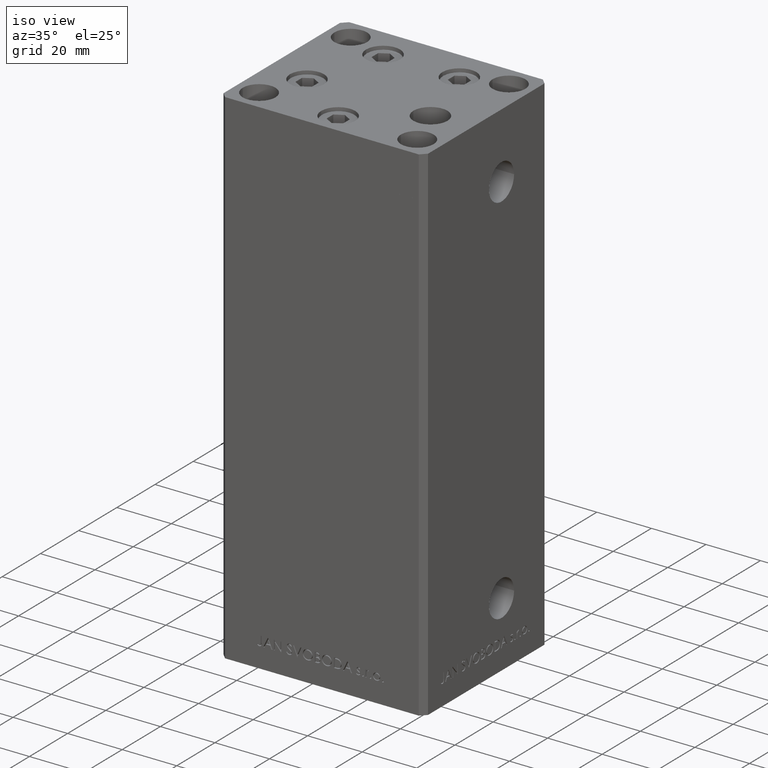
[diagram: clean part render]
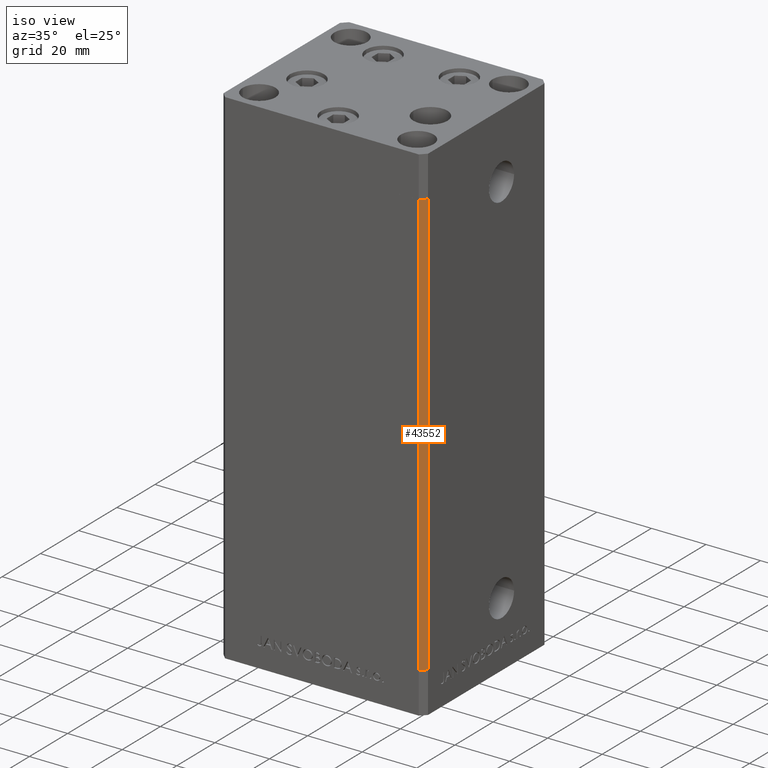
[diagram: same view with one face highlighted and labeled with its STEP entity id]
A machine part, iso view. The second image highlights one B-rep face of the part: STEP entity #43552.
In plain terms, the highlighted planar face has unit normal (0.7071, -0.7071, 0).
Its self-contained STEP definition (entity closure, byte-faithful):
#3311 = ORIENTED_EDGE ( 'NONE', *, *, #38505, .T. ) ;
#3762 = ORIENTED_EDGE ( 'NONE', *, *, #7713, .F. ) ;
#5356 = CARTESIAN_POINT ( 'NONE',  ( 37.49999999999999289, -30.50000000000000000, 0.000000000000000000 ) ) ;
#6138 = DIRECTION ( 'NONE',  ( -0.7071067811865474617, -0.7071067811865474617, 0.000000000000000000 ) ) ;
#7459 = PLANE ( 'NONE',  #12699 ) ;
#7713 = EDGE_CURVE ( 'NONE', #14656, #33504, #29270, .T. ) ;
#9428 = CARTESIAN_POINT ( 'NONE',  ( 35.49999999999999289, -32.50000000000000000, 0.000000000000000000 ) ) ;
#10184 = ORIENTED_EDGE ( 'NONE', *, *, #49254, .F. ) ;
#10701 = DIRECTION ( 'NONE',  ( 0.7071067811865475727, -0.7071067811865475727, 0.000000000000000000 ) ) ;
#10947 = FACE_OUTER_BOUND ( 'NONE', #41287, .T. ) ;
#11087 = CARTESIAN_POINT ( 'NONE',  ( 35.49999999999999289, -32.50000000000000000, 156.0000000000000000 ) ) ;
#12699 = AXIS2_PLACEMENT_3D ( 'NONE', #22675, #10701, #18438 ) ;
#14070 = CARTESIAN_POINT ( 'NONE',  ( 37.49999999999999289, -30.50000000000000000, 156.0000000000000000 ) ) ;
#14656 = VERTEX_POINT ( 'NONE', #39834 ) ;
#17326 = DIRECTION ( 'NONE',  ( -0.000000000000000000, -0.000000000000000000, -1.000000000000000000 ) ) ;
#18100 = VERTEX_POINT ( 'NONE', #9428 ) ;
#18438 = DIRECTION ( 'NONE',  ( 0.7071067811865474617, 0.7071067811865474617, 0.000000000000000000 ) ) ;
#19915 = VECTOR ( 'NONE', #45524, 1000.000000000000000 ) ;
#22675 = CARTESIAN_POINT ( 'NONE',  ( 37.49999999999999289, -30.50000000000000000, 156.0000000000000000 ) ) ;
#24187 = DIRECTION ( 'NONE',  ( -0.7071067811865474617, -0.7071067811865474617, 0.000000000000000000 ) ) ;
#25084 = CARTESIAN_POINT ( 'NONE',  ( 37.49999999999999289, -30.50000000000000000, 0.000000000000000000 ) ) ;
#25272 = VECTOR ( 'NONE', #24187, 1000.000000000000114 ) ;
#26303 = VECTOR ( 'NONE', #17326, 1000.000000000000000 ) ;
#28211 = VERTEX_POINT ( 'NONE', #11087 ) ;
#29270 = LINE ( 'NONE', #14070, #26303 ) ;
#32376 = LINE ( 'NONE', #36119, #25272 ) ;
#32544 = LINE ( 'NONE', #25084, #33426 ) ;
#33426 = VECTOR ( 'NONE', #6138, 1000.000000000000114 ) ;
#33504 = VERTEX_POINT ( 'NONE', #5356 ) ;
#36119 = CARTESIAN_POINT ( 'NONE',  ( 37.49999999999999289, -30.50000000000000000, 156.0000000000000000 ) ) ;
#38140 = ORIENTED_EDGE ( 'NONE', *, *, #47617, .T. ) ;
#38505 = EDGE_CURVE ( 'NONE', #14656, #28211, #32376, .T. ) ;
#39834 = CARTESIAN_POINT ( 'NONE',  ( 37.49999999999999289, -30.50000000000000000, 156.0000000000000000 ) ) ;
#41287 = EDGE_LOOP ( 'NONE', ( #10184, #3762, #3311, #38140 ) ) ;
#42524 = CARTESIAN_POINT ( 'NONE',  ( 35.49999999999999289, -32.50000000000000000, 156.0000000000000000 ) ) ;
#43552 = ADVANCED_FACE ( 'NONE', ( #10947 ), #7459, .T. ) ;
#45524 = DIRECTION ( 'NONE',  ( -0.000000000000000000, -0.000000000000000000, -1.000000000000000000 ) ) ;
#45777 = LINE ( 'NONE', #42524, #19915 ) ;
#47617 = EDGE_CURVE ( 'NONE', #28211, #18100, #45777, .T. ) ;
#49254 = EDGE_CURVE ( 'NONE', #33504, #18100, #32544, .T. ) ;